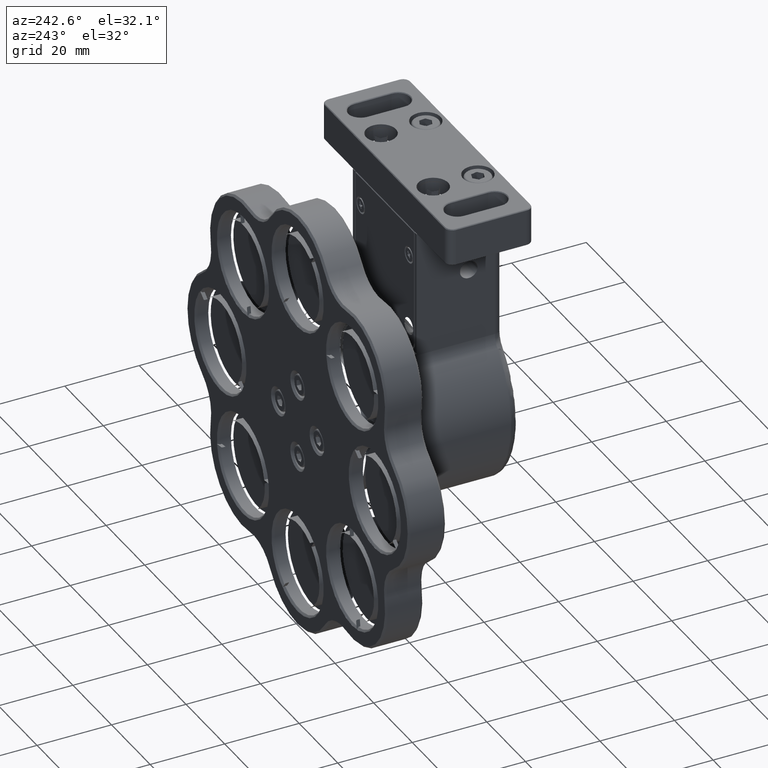
[diagram: clean part render]
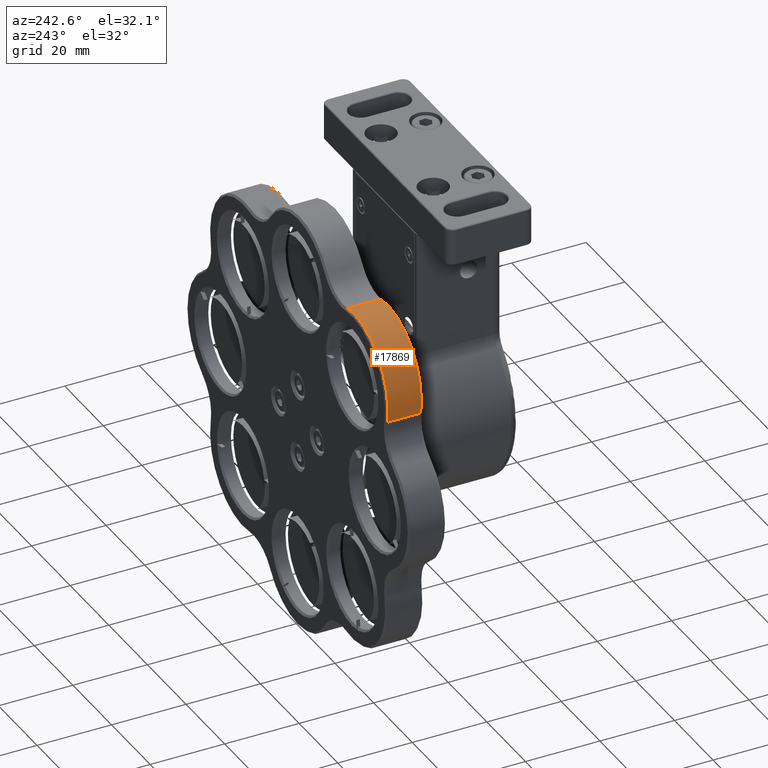
[diagram: same view with one face highlighted and labeled with its STEP entity id]
A machine part, auxiliary view. The second image highlights one B-rep face of the part: STEP entity #17869.
In plain terms, the highlighted cylindrical surface (partial cylindrical patch) has radius 17.5 mm, axis along (-0, 1, 0).
Its self-contained STEP definition (entity closure, byte-faithful):
#223 = CYLINDRICAL_SURFACE ( 'NONE', #17598, 17.50000000000000711 ) ;
#697 = CARTESIAN_POINT ( 'NONE',  ( -49.42668815487941458, 32.57911804988289362, 115.4436445095856385 ) ) ;
#895 = DIRECTION ( 'NONE',  ( 3.488278094132890012E-29, -1.000000000000000000, -0.000000000000000000 ) ) ;
#908 = CARTESIAN_POINT ( 'NONE',  ( -49.42668815487940037, 41.57911804988288651, 115.4436445095856385 ) ) ;
#1883 = CARTESIAN_POINT ( 'NONE',  ( -49.42668815487942169, 32.07911804988289362, 115.4436445095856243 ) ) ;
#1992 = AXIS2_PLACEMENT_3D ( 'NONE', #5329, #16158, #13384 ) ;
#2173 = DIRECTION ( 'NONE',  ( -3.488278094132890012E-29, 1.000000000000000000, -0.000000000000000000 ) ) ;
#2867 = LINE ( 'NONE', #8852, #9013 ) ;
#5209 = EDGE_CURVE ( 'NONE', #7236, #7522, #7977, .T. ) ;
#5296 = CARTESIAN_POINT ( 'NONE',  ( -52.86266097914315765, 32.57911804988288651, 98.28427124740262855 ) ) ;
#5329 = CARTESIAN_POINT ( 'NONE',  ( -52.86266097914315765, 41.57911804988289362, 98.28427124740262855 ) ) ;
#5332 = CIRCLE ( 'NONE', #12244, 17.50000000000000711 ) ;
#5837 = EDGE_CURVE ( 'NONE', #11680, #7236, #5332, .T. ) ;
#5947 = DIRECTION ( 'NONE',  ( -1.000000000000000000, 0.000000000000000000, 0.000000000000000000 ) ) ;
#6232 = CARTESIAN_POINT ( 'NONE',  ( -52.86266097914315765, 32.07911804988289362, 98.28427124740262855 ) ) ;
#7060 = DIRECTION ( 'NONE',  ( -1.000000000000000000, 0.000000000000000000, 0.000000000000000000 ) ) ;
#7236 = VERTEX_POINT ( 'NONE', #697 ) ;
#7522 = VERTEX_POINT ( 'NONE', #908 ) ;
#7977 = LINE ( 'NONE', #1883, #13173 ) ;
#8235 = EDGE_LOOP ( 'NONE', ( #13050, #16598, #16712, #17496 ) ) ;
#8339 = EDGE_CURVE ( 'NONE', #9274, #7522, #12354, .T. ) ;
#8852 = CARTESIAN_POINT ( 'NONE',  ( -70.02203424131175780, 32.07911804988289362, 94.84829842306693592 ) ) ;
#9013 = VECTOR ( 'NONE', #895, 1000.000000000000000 ) ;
#9274 = VERTEX_POINT ( 'NONE', #15244 ) ;
#9522 = CARTESIAN_POINT ( 'NONE',  ( -70.02203424131175780, 32.57911804988288651, 94.84829842306693592 ) ) ;
#10198 = DIRECTION ( 'NONE',  ( -3.488278094132890012E-29, 1.000000000000000000, 0.000000000000000000 ) ) ;
#11680 = VERTEX_POINT ( 'NONE', #9522 ) ;
#12244 = AXIS2_PLACEMENT_3D ( 'NONE', #5296, #10198, #7060 ) ;
#12354 = CIRCLE ( 'NONE', #1992, 17.49999999999999645 ) ;
#13050 = ORIENTED_EDGE ( 'NONE', *, *, #8339, .F. ) ;
#13173 = VECTOR ( 'NONE', #2173, 1000.000000000000000 ) ;
#13384 = DIRECTION ( 'NONE',  ( -1.000000000000000000, 0.000000000000000000, -2.087219286295294700E-12 ) ) ;
#15006 = FACE_OUTER_BOUND ( 'NONE', #8235, .T. ) ;
#15244 = CARTESIAN_POINT ( 'NONE',  ( -70.02203424131175780, 41.57911804988289362, 94.84829842306696435 ) ) ;
#15260 = EDGE_CURVE ( 'NONE', #9274, #11680, #2867, .T. ) ;
#16158 = DIRECTION ( 'NONE',  ( -3.488278094132890012E-29, 1.000000000000000000, -0.000000000000000000 ) ) ;
#16598 = ORIENTED_EDGE ( 'NONE', *, *, #15260, .T. ) ;
#16712 = ORIENTED_EDGE ( 'NONE', *, *, #5837, .T. ) ;
#17496 = ORIENTED_EDGE ( 'NONE', *, *, #5209, .T. ) ;
#17598 = AXIS2_PLACEMENT_3D ( 'NONE', #6232, #18259, #5947 ) ;
#17869 = ADVANCED_FACE ( 'NONE', ( #15006 ), #223, .T. ) ;
#18259 = DIRECTION ( 'NONE',  ( -3.488278094132890012E-29, 1.000000000000000000, 0.000000000000000000 ) ) ;